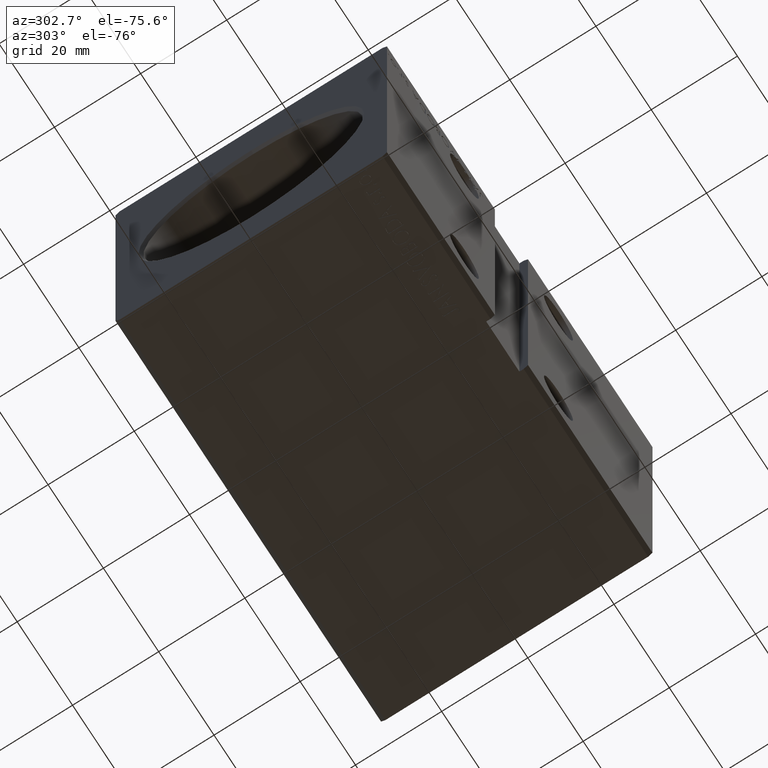
[diagram: clean part render]
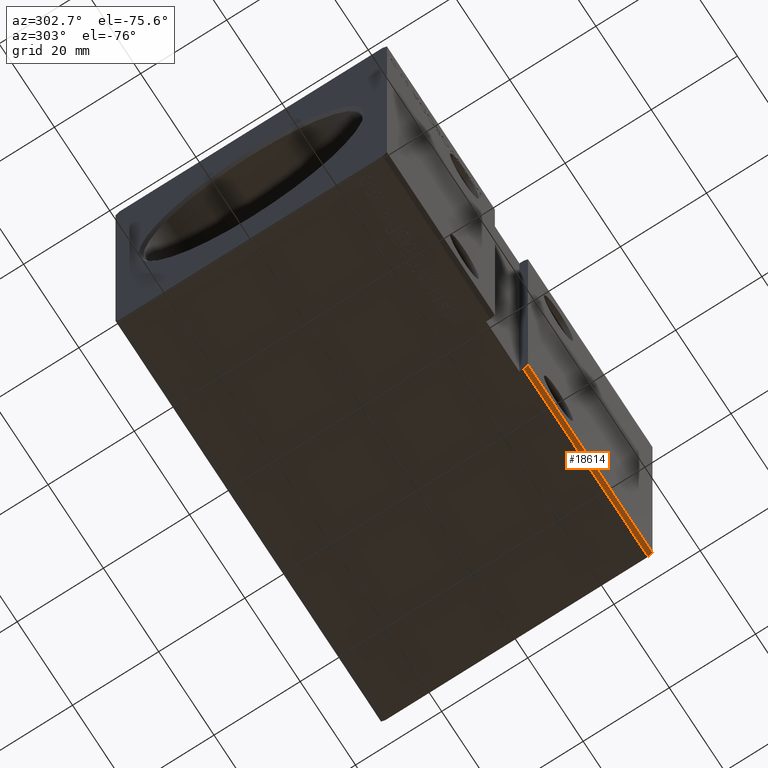
[diagram: same view with one face highlighted and labeled with its STEP entity id]
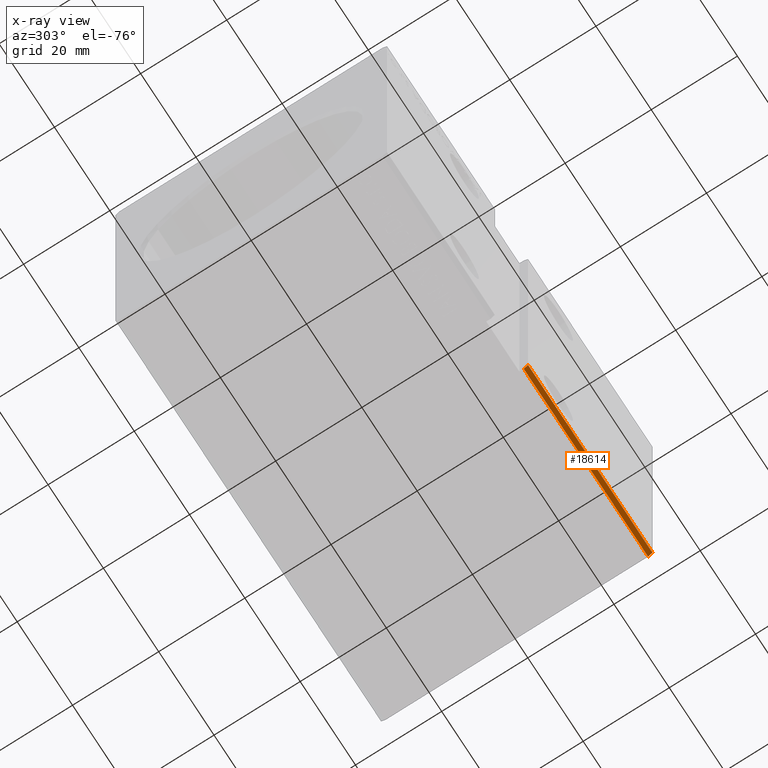
[diagram: x-ray of the same camera — body ghosted, the highlighted face saturated]
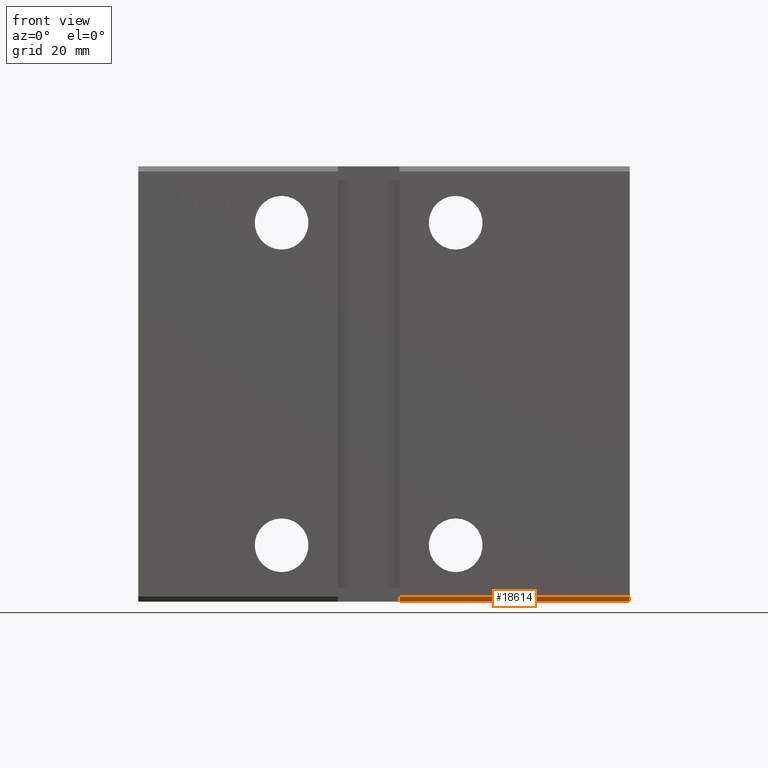
[diagram: same view with one face highlighted and labeled with its STEP entity id]
A machine part, auxiliary view. The second image highlights one B-rep face of the part: STEP entity #18614.
The next image is the same camera in x-ray: the body ghosted, the highlighted face saturated — about 0% of this face is hidden behind the body in this view.
A second angle (front view) of the same face is appended — the face is thin or edge-on in the first view.
In plain terms, the highlighted planar face has unit normal (-0, 0.7071, 0.7071).
Its self-contained STEP definition (entity closure, byte-faithful):
#709 = ORIENTED_EDGE ( 'NONE', *, *, #26528, .T. ) ;
#1632 = AXIS2_PLACEMENT_3D ( 'NONE', #39784, #21367, #11664 ) ;
#1911 = EDGE_CURVE ( 'NONE', #3032, #15900, #2587, .T. ) ;
#2587 = LINE ( 'NONE', #36776, #24190 ) ;
#3032 = VERTEX_POINT ( 'NONE', #17837 ) ;
#4369 = ORIENTED_EDGE ( 'NONE', *, *, #1911, .F. ) ;
#5935 = EDGE_LOOP ( 'NONE', ( #709, #13763, #22494, #4369 ) ) ;
#7348 = VECTOR ( 'NONE', #17306, 1000.000000000000000 ) ;
#8245 = FACE_OUTER_BOUND ( 'NONE', #5935, .T. ) ;
#9435 = DIRECTION ( 'NONE',  ( 5.772398745160957218E-17, 0.7071067811865451302, -0.7071067811865500152 ) ) ;
#10634 = CARTESIAN_POINT ( 'NONE',  ( 96.00000000000000000, -30.50000000000000711, -42.50000000000000711 ) ) ;
#11026 = VERTEX_POINT ( 'NONE', #16804 ) ;
#11664 = DIRECTION ( 'NONE',  ( 0.000000000000000000, -0.7071067811865451302, 0.7071067811865500152 ) ) ;
#12083 = CARTESIAN_POINT ( 'NONE',  ( 51.00000000000000711, -31.50000000000000000, -41.50000000000000711 ) ) ;
#13763 = ORIENTED_EDGE ( 'NONE', *, *, #35188, .T. ) ;
#15900 = VERTEX_POINT ( 'NONE', #21598 ) ;
#16804 = CARTESIAN_POINT ( 'NONE',  ( 51.00000000000000711, -31.50000000000000000, -41.50000000000000711 ) ) ;
#17101 = LINE ( 'NONE', #10634, #7348 ) ;
#17286 = CARTESIAN_POINT ( 'NONE',  ( 96.00000000000000000, -31.50000000000000000, -41.50000000000000711 ) ) ;
#17306 = DIRECTION ( 'NONE',  ( -1.000000000000000000, -0.000000000000000000, -0.000000000000000000 ) ) ;
#17837 = CARTESIAN_POINT ( 'NONE',  ( 96.00000000000000000, -31.50000000000000000, -41.50000000000000711 ) ) ;
#18614 = ADVANCED_FACE ( 'NONE', ( #8245 ), #33713, .F. ) ;
#21367 = DIRECTION ( 'NONE',  ( -0.000000000000000000, 0.7071067811865500152, 0.7071067811865451302 ) ) ;
#21519 = VERTEX_POINT ( 'NONE', #27534 ) ;
#21598 = CARTESIAN_POINT ( 'NONE',  ( 96.00000000000000000, -30.50000000000000711, -42.50000000000000711 ) ) ;
#22494 = ORIENTED_EDGE ( 'NONE', *, *, #34642, .F. ) ;
#23987 = VECTOR ( 'NONE', #27001, 1000.000000000000000 ) ;
#24190 = VECTOR ( 'NONE', #24632, 1000.000000000000114 ) ;
#24632 = DIRECTION ( 'NONE',  ( 0.000000000000000000, 0.7071067811865451302, -0.7071067811865500152 ) ) ;
#26528 = EDGE_CURVE ( 'NONE', #3032, #11026, #38730, .T. ) ;
#27001 = DIRECTION ( 'NONE',  ( -1.000000000000000000, -0.000000000000000000, -0.000000000000000000 ) ) ;
#27534 = CARTESIAN_POINT ( 'NONE',  ( 51.00000000000000711, -30.50000000000000711, -42.50000000000000711 ) ) ;
#29330 = VECTOR ( 'NONE', #9435, 1000.000000000000114 ) ;
#33713 = PLANE ( 'NONE',  #1632 ) ;
#34642 = EDGE_CURVE ( 'NONE', #15900, #21519, #17101, .T. ) ;
#35188 = EDGE_CURVE ( 'NONE', #11026, #21519, #39795, .T. ) ;
#36776 = CARTESIAN_POINT ( 'NONE',  ( 96.00000000000000000, -31.50000000000000000, -41.50000000000000711 ) ) ;
#38730 = LINE ( 'NONE', #17286, #23987 ) ;
#39784 = CARTESIAN_POINT ( 'NONE',  ( 96.00000000000000000, -31.50000000000000000, -41.50000000000000711 ) ) ;
#39795 = LINE ( 'NONE', #12083, #29330 ) ;